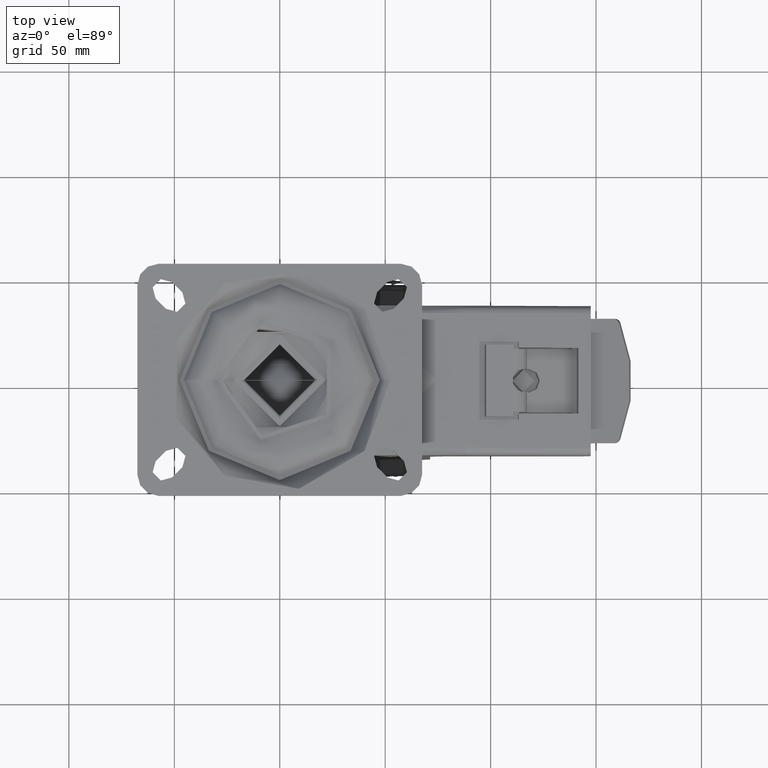
[diagram: clean part render]
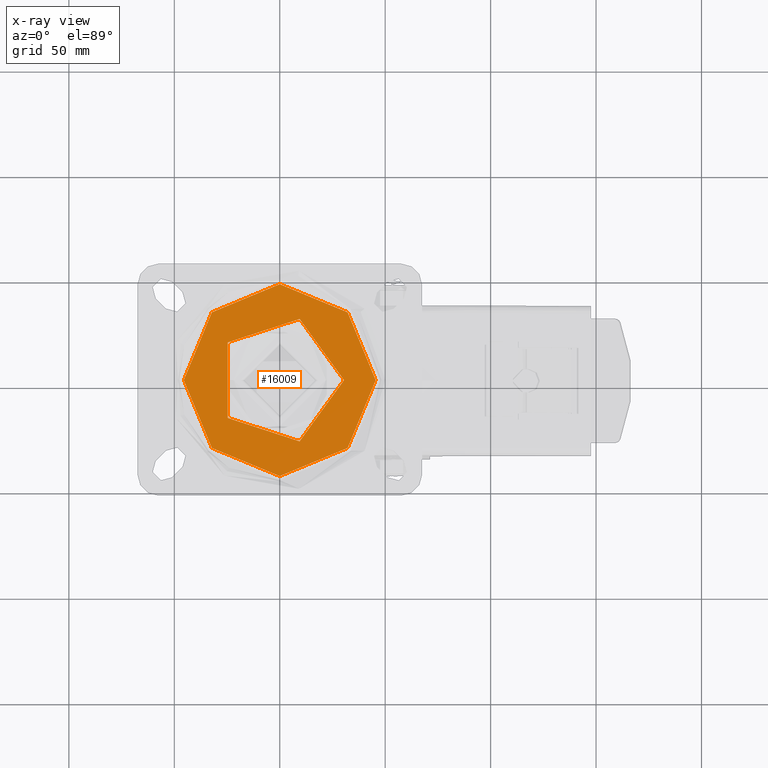
[diagram: x-ray — body ghosted, one internal face saturated and labeled with its STEP entity id]
A machine part, top view, then the same camera in x-ray: the body is ghosted and one INTERNAL B-rep face — a face not visible from any outside direction — is saturated and labeled: STEP entity #16009.
In plain terms, the highlighted planar face has unit normal (0, 0, -1).
Its self-contained STEP definition (entity closure, byte-faithful):
#824=FACE_BOUND('',#3240,.T.);
#1060=PLANE('',#17396);
#2265=FACE_OUTER_BOUND('',#3239,.T.);
#3239=EDGE_LOOP('',(#11768));
#3240=EDGE_LOOP('',(#11769));
#6452=CIRCLE('',#17339,30.5);
#6454=CIRCLE('',#17342,45.5);
#7162=VERTEX_POINT('',#26137);
#7163=VERTEX_POINT('',#26141);
#8838=EDGE_CURVE('',#7162,#7162,#6452,.T.);
#8840=EDGE_CURVE('',#7163,#7163,#6454,.T.);
#11768=ORIENTED_EDGE('',*,*,#8840,.F.);
#11769=ORIENTED_EDGE('',*,*,#8838,.F.);
#16009=ADVANCED_FACE('',(#2265,#824),#1060,.F.);
#17339=AXIS2_PLACEMENT_3D('',#26139,#19250,#19251);
#17342=AXIS2_PLACEMENT_3D('',#26143,#19256,#19257);
#17396=AXIS2_PLACEMENT_3D('',#26706,#19448,#19449);
#19250=DIRECTION('center_axis',(0.,0.,1.));
#19251=DIRECTION('ref_axis',(-1.,0.,0.));
#19256=DIRECTION('center_axis',(0.,0.,-1.));
#19257=DIRECTION('ref_axis',(1.,1.22464679914735E-16,0.));
#19448=DIRECTION('center_axis',(0.,0.,-1.));
#19449=DIRECTION('ref_axis',(-1.,0.,0.));
#26137=CARTESIAN_POINT('',(30.5,3.73517273739943E-15,-13.));
#26139=CARTESIAN_POINT('Origin',(0.,0.,-13.));
#26141=CARTESIAN_POINT('',(45.5,5.57214293612046E-15,-13.));
#26143=CARTESIAN_POINT('Origin',(0.,0.,-13.));
#26706=CARTESIAN_POINT('Origin',(0.,0.,-13.));